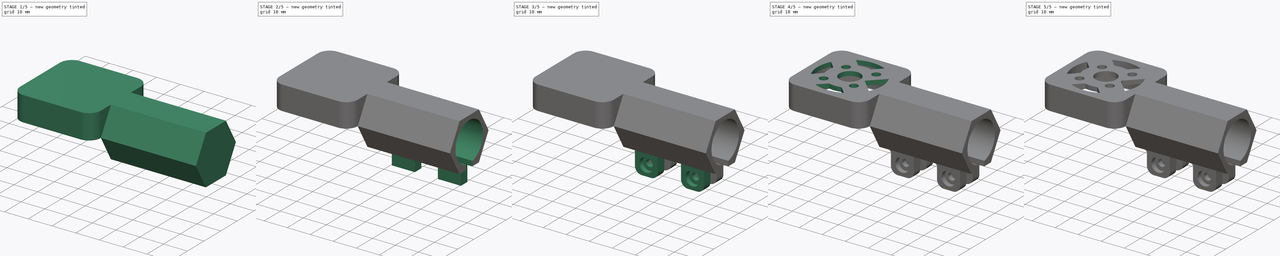
[diagram: build sequence overview — one tinted view per stage of 5, left to right]
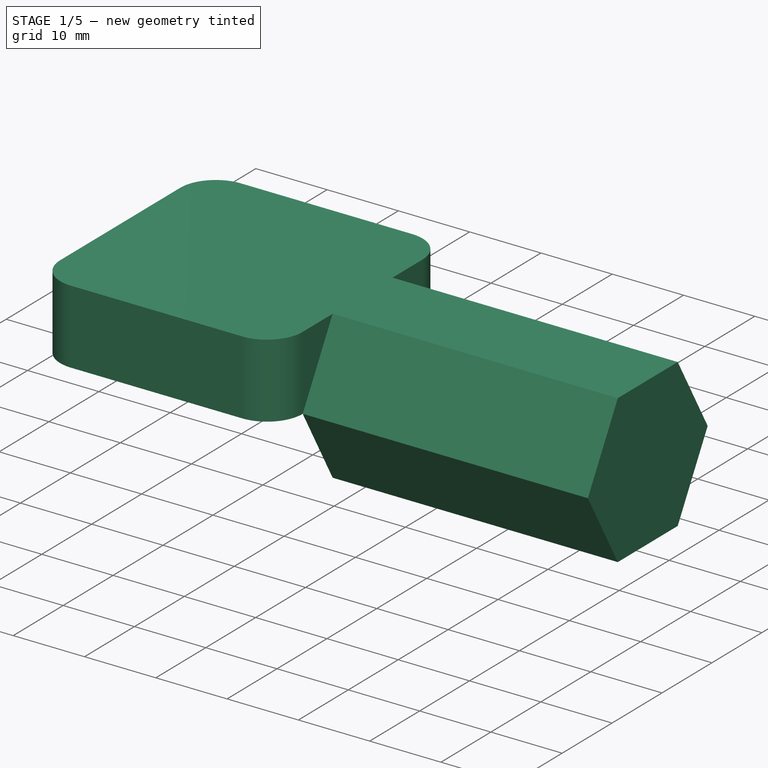
[diagram: stage 1 of 5 — iso view after this stage's code; geometry added in this stage tinted green]
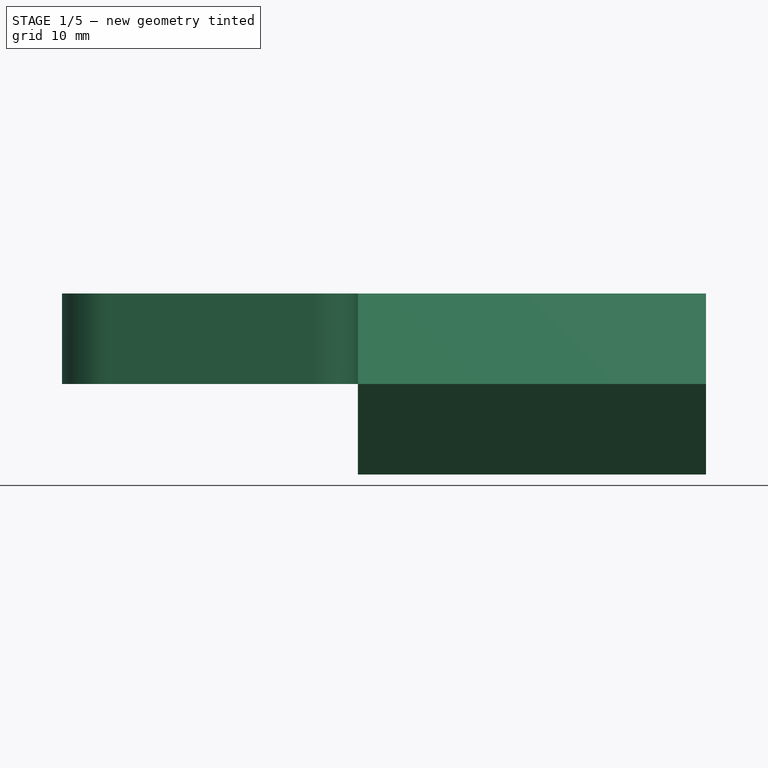
[diagram: stage 1 of 5 — front view after this stage's code; geometry added in this stage tinted green]
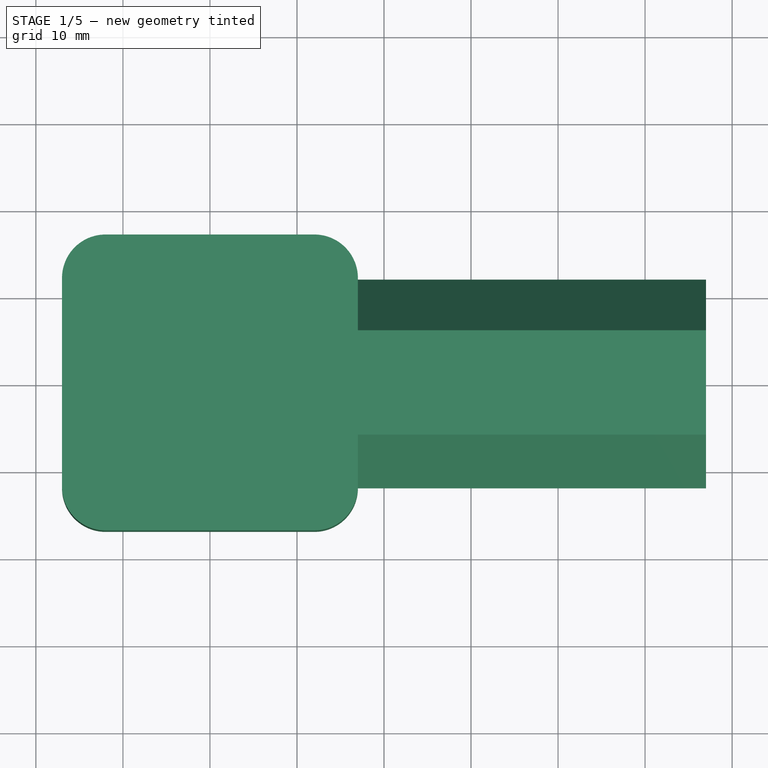
[diagram: stage 1 of 5 — top view after this stage's code; geometry added in this stage tinted green]
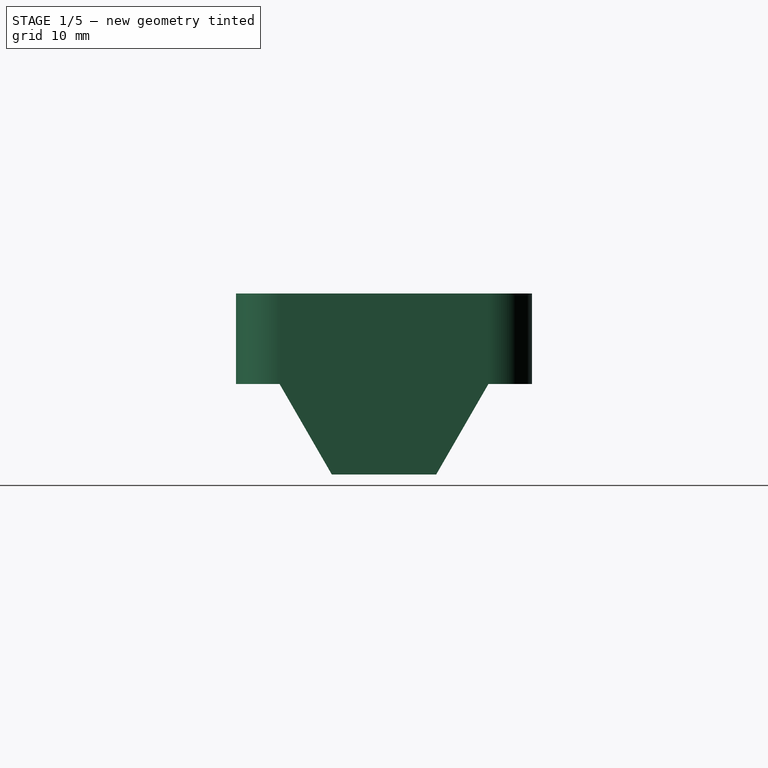
[diagram: stage 1 of 5 — right view after this stage's code; geometry added in this stage tinted green]
FCSTD DOCUMENT  (FreeCAD 0.20R29603 (Git))
Label: A2212_motor_base
License: All rights reserved
LicenseURL: http://en.wikipedia.org/wiki/All_rights_reserved
objects: PartDesign::Fillet×12, Sketcher::SketchObject×11, PartDesign::Pocket×7, PartDesign::Pad×4, PartDesign::Body×1
note: 58 computed .brp shape members not serialized (recipe doc carries the construction recipe); baked Part::Feature solids carry a one-line shape summary decoded from their .brp

FEATURE [Sketcher::SketchObject] Sketch
  FullyConstrained = true
  MapMode = 5
  Support = -> [XY_Plane]
  sketch-geometry (5):
    g0: LineSegment StartX=-17 StartY=-17 StartZ=0 EndX=-17 EndY=17 EndZ=0
    g1: LineSegment StartX=-17 StartY=17 StartZ=0 EndX=17 EndY=17 EndZ=0
    g2: LineSegment StartX=17 StartY=17 StartZ=0 EndX=17 EndY=-17 EndZ=0
    g3: LineSegment StartX=17 StartY=-17 StartZ=0 EndX=-17 EndY=-17 EndZ=0
    g4: GeomPoint X=0 Y=0 Z=0
  constraints (12):
    c: Coincident(g0,g1)
    c: Coincident(g1,g2)
    c: Coincident(g2,g3)
    c: Coincident(g3,g0)
    c: Horizontal(g1)
    c: Horizontal(g3)
    c: Vertical(g0)
    c: Vertical(g2)
    c: Symmetric(g1,g0,g4)
    c: Coincident(g4,g-1)
    c: DistanceX(g1,g1) = 34
    c: DistanceY(g2,g2) = 34
FEATURE [PartDesign::Pad] Pad
  Direction = (0,0,1)
  Length = 10.3923
  Length2 = 10
  Profile = -> Sketch
  ReferenceAxis = -> Sketch [N_Axis]
  Type = 0
  expr: Length = 10.3923mm
FEATURE [Sketcher::SketchObject] Sketch001
  FullyConstrained = true
  MapMode = 5
  Placement = pos=(0,0,0) rot=(1,0,0;3.14159rad)
  Support = -> [Pad]
  sketch-geometry (1):
    g0: Circle CenterX=0 CenterY=0 CenterZ=0 NormalX=0 NormalY=0 NormalZ=1 AngleXU=0 Radius=14
  constraints (2):
    c: Coincident(g0,g-1)
    c: Diameter(g0) = 28
FEATURE [PartDesign::Pocket] Pocket
  BaseFeature = -> Pad
  Direction = (0,0,1)
  Length = 8.5
  Length2 = 5
  Profile = -> Sketch001
  ReferenceAxis = -> Sketch001 [N_Axis]
  Type = 0
FEATURE [PartDesign::Fillet] Fillet
  Base = -> Pocket [Edge1]
  BaseFeature = -> Pocket
  Radius = 5
  SupportTransform = false
  UseAllEdges = false
FEATURE [PartDesign::Fillet] Fillet001
  Base = -> Fillet [Edge16,Edge12,Edge3]
  BaseFeature = -> Fillet
  Radius = 5
  SupportTransform = false
  UseAllEdges = false
FEATURE [Sketcher::SketchObject] Sketch002
  FullyConstrained = true
  MapMode = 5
  Placement = pos=(17,0,0) rot=(0.57735,0.57735,0.57735;2.0944rad)
  Support = -> [Fillet001]
  sketch-geometry (7):
    g0: LineSegment StartX=6 StartY=10.3923 StartZ=0 EndX=-6 EndY=10.3923 EndZ=0
    g1: LineSegment StartX=-6 StartY=10.3923 StartZ=0 EndX=-12 EndY=0 EndZ=0
    g2: LineSegment StartX=-12 StartY=0 StartZ=0 EndX=-6 EndY=-10.3923 EndZ=0
    g3: LineSegment StartX=-6 StartY=-10.3923 StartZ=0 EndX=6 EndY=-10.3923 EndZ=0
    g4: LineSegment StartX=6 StartY=-10.3923 StartZ=0 EndX=12 EndY=0 EndZ=0
    g5: LineSegment StartX=12 StartY=0 StartZ=0 EndX=6 EndY=10.3923 EndZ=0
    g6: Circle CenterX=0 CenterY=0 CenterZ=0 NormalX=0 NormalY=0 NormalZ=1 AngleXU=0 Radius=12
  constraints (16):
    c: Coincident(g0,g1)
    c: Coincident(g1,g2)
    c: Coincident(g2,g3)
    c: Coincident(g3,g4)
    c: Coincident(g4,g5)
    c: Coincident(g5,g0)
    c: Equal(g0, g1-g5) x5
    c: PointOnObject(g0,g6)
    c: PointOnObject(g1,g6)
    c: PointOnObject(g2,g6)
    c: PointOnObject(g3,g6)
    c: PointOnObject(g4,g6)
    c: PointOnObject(g5,g6)
    c: Coincident(g6,g-1)
    c: Horizontal(g0)
    c: Diameter(g6) = 24
FEATURE [PartDesign::Pad] Pad001
  BaseFeature = -> Fillet001
  Direction = (1,0,0)
  Length = 40
  Length2 = 10
  Profile = -> Sketch002
  ReferenceAxis = -> Sketch002 [N_Axis]
  Type = 0
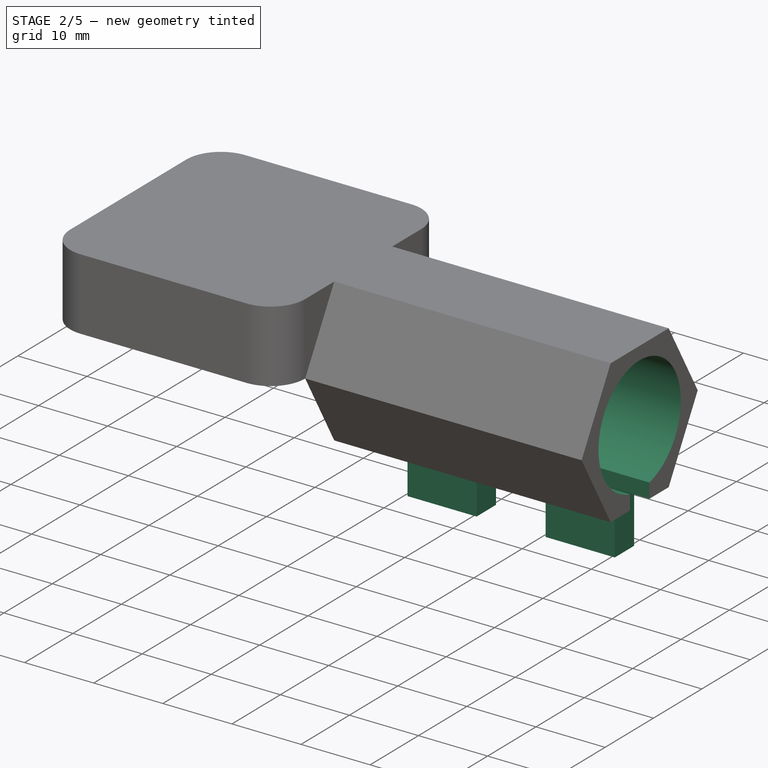
[diagram: stage 2 of 5 — iso view after this stage's code; geometry added in this stage tinted green]
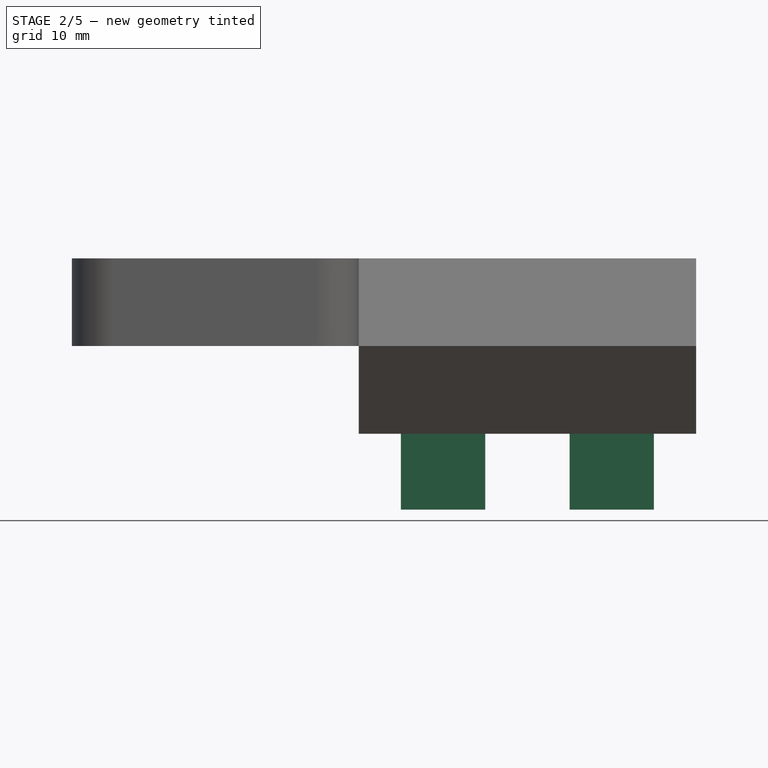
[diagram: stage 2 of 5 — front view after this stage's code; geometry added in this stage tinted green]
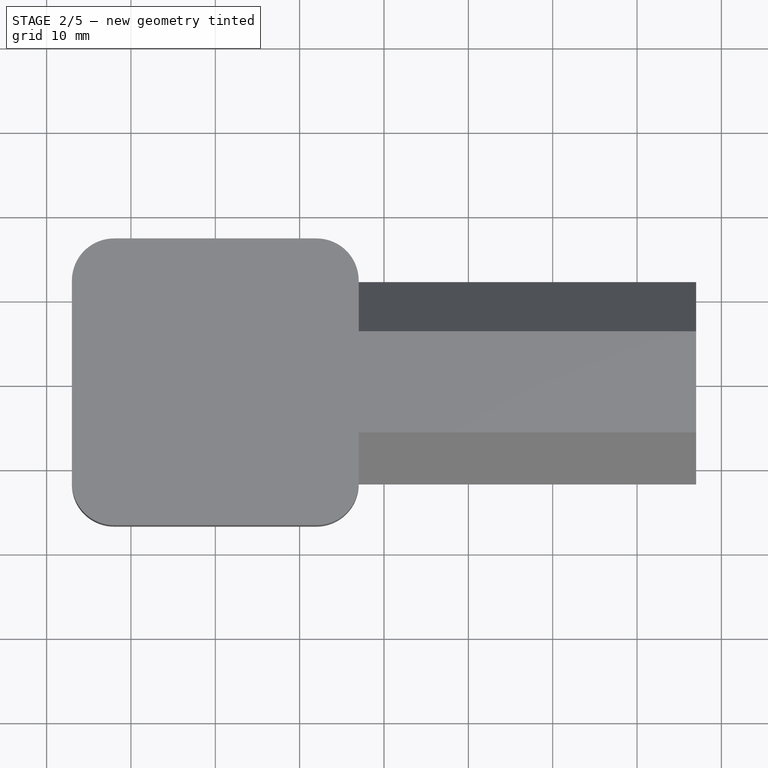
[diagram: stage 2 of 5 — top view after this stage's code; geometry added in this stage tinted green]
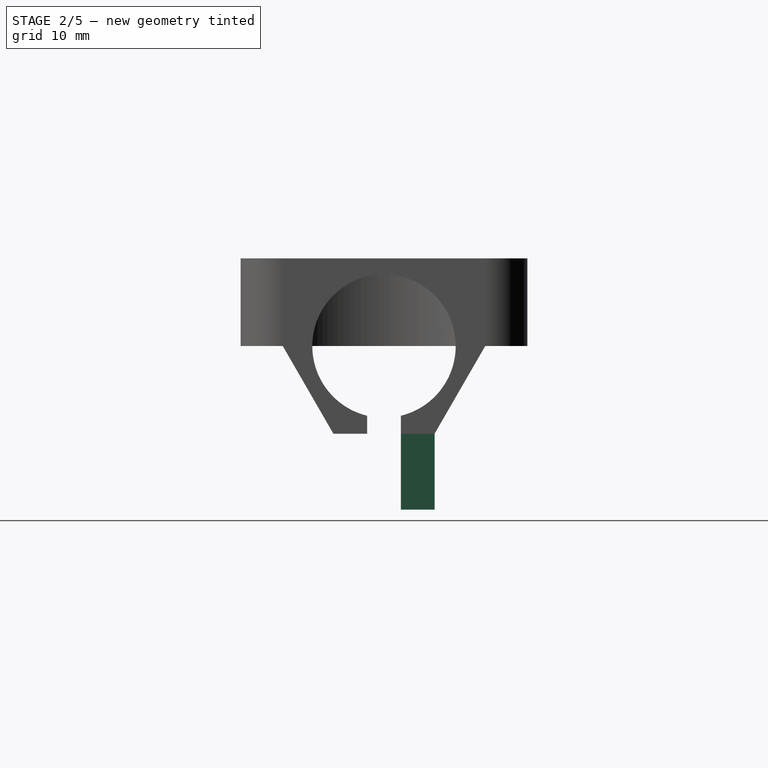
[diagram: stage 2 of 5 — right view after this stage's code; geometry added in this stage tinted green]
FEATURE [Sketcher::SketchObject] Sketch003
  FullyConstrained = true
  MapMode = 5
  Placement = pos=(57,0,0) rot=(0.57735,0.57735,0.57735;2.0944rad)
  Support = -> [Pad001]
  sketch-geometry (1):
    g0: Circle CenterX=0 CenterY=0 CenterZ=0 NormalX=0 NormalY=0 NormalZ=1 AngleXU=0 Radius=8.5
  constraints (2):
    c: Coincident(g0,g-1)
    c: Diameter(g0) = 17
FEATURE [PartDesign::Pocket] Pocket001
  BaseFeature = -> Pad001
  Direction = (-1,0,0)
  Length = 50
  Length2 = 5
  Profile = -> Sketch003
  ReferenceAxis = -> Sketch003 [N_Axis]
  Type = 0
FEATURE [Sketcher::SketchObject] Sketch004
  FullyConstrained = true
  MapMode = 5
  Placement = pos=(0,0,-10.3923) rot=(1,0,0;3.14159rad)
  Support = -> [Pocket001]
  sketch-geometry (5):
    g0: LineSegment StartX=17 StartY=-2 StartZ=0 EndX=17 EndY=2 EndZ=0
    g1: LineSegment StartX=17 StartY=2 StartZ=0 EndX=57 EndY=2 EndZ=0
    g2: LineSegment StartX=57 StartY=2 StartZ=0 EndX=57 EndY=-2 EndZ=0
    g3: LineSegment StartX=57 StartY=-2 StartZ=0 EndX=17 EndY=-2 EndZ=0
    g4: GeomPoint X=37 Y=0 Z=0
  constraints (13):
    c: Coincident(g0,g1)
    c: Coincident(g1,g2)
    c: Coincident(g2,g3)
    c: Coincident(g3,g0)
    c: Horizontal(g1)
    c: Horizontal(g3)
    c: Vertical(g0)
    c: Vertical(g2)
    c: Symmetric(g1,g0,g4)
    c: PointOnObject(g4,g-1)
    c: DistanceX(g1,g1) = 40
    c: DistanceY(g2,g2) = 4
    c: DistanceX(g-1,g4) = 37
FEATURE [PartDesign::Pocket] Pocket002
  BaseFeature = -> Pocket001
  Direction = (0,0,1)
  Length = 5
  Length2 = 5
  Profile = -> Sketch004
  ReferenceAxis = -> Sketch004 [N_Axis]
  Type = 0
FEATURE [Sketcher::SketchObject] Sketch005
  FullyConstrained = true
  MapMode = 5
  Placement = pos=(0,0,-10.3923) rot=(1,0,0;3.14159rad)
  Support = -> [Pocket002]
  sketch-geometry (10):
    g0: LineSegment StartX=22 StartY=-2 StartZ=0 EndX=22 EndY=-6 EndZ=0
    g1: LineSegment StartX=22 StartY=-6 StartZ=0 EndX=32 EndY=-6 EndZ=0
    g2: LineSegment StartX=32 StartY=-6 StartZ=0 EndX=32 EndY=-2 EndZ=0
    g3: LineSegment StartX=32 StartY=-2 StartZ=0 EndX=22 EndY=-2 EndZ=0
    g4: GeomPoint X=27 Y=-4 Z=0
    g5: LineSegment StartX=42 StartY=-2 StartZ=0 EndX=42 EndY=-6 EndZ=0
    g6: LineSegment StartX=42 StartY=-6 StartZ=0 EndX=52 EndY=-6 EndZ=0
    g7: LineSegment StartX=52 StartY=-6 StartZ=0 EndX=52 EndY=-2 EndZ=0
    g8: LineSegment StartX=52 StartY=-2 StartZ=0 EndX=42 EndY=-2 EndZ=0
    g9: GeomPoint X=47 Y=-4 Z=0
  constraints (26):
    c: Coincident(g0,g1)
    c: Coincident(g1,g2)
    c: Coincident(g2,g3)
    c: Coincident(g3,g0)
    c: Horizontal(g1)
    c: Horizontal(g3)
    c: Vertical(g0)
    c: Vertical(g2)
    c: Symmetric(g1,g0,g4)
    c: Coincident(g5,g6)
    c: Coincident(g6,g7)
    c: Coincident(g7,g8)
    c: Coincident(g8,g5)
    c: Horizontal(g6)
    c: Horizontal(g8)
    c: Vertical(g5)
    c: Vertical(g7)
    c: Symmetric(g6,g5,g9)
    c: DistanceX(g1,g1) = 10
    c: DistanceY(g0,g0) = 4
    c: DistanceX(g8,g8) = 10
    c: DistanceY(g7,g7) = 4
    c: DistanceX(g-1,g0) = 22
    c: DistanceY(g0,g-1) = 2
    c: DistanceX(g2,g5) = 10
    c: Horizontal(g2,g5)
FEATURE [PartDesign::Pad] Pad002
  BaseFeature = -> Pocket002
  Direction = (0,0,-1)
  Length = 9
  Length2 = 10
  Profile = -> Sketch005
  ReferenceAxis = -> Sketch005 [N_Axis]
  Type = 0
FEATURE [Sketcher::SketchObject] Sketch006
  FullyConstrained = true
  MapMode = 5
  Placement = pos=(0,6,0) rot=(0,0.707107,0.707107;3.14159rad)
  Support = -> [Pad002]
  sketch-geometry (14):
    g0: LineSegment StartX=-45.375 StartY=-12.0777 StartZ=0 EndX=-48.625 EndY=-12.0777 EndZ=0
    g1: LineSegment StartX=-48.625 StartY=-12.0777 StartZ=0 EndX=-50.25 EndY=-14.8923 EndZ=0
    g2: LineSegment StartX=-50.25 StartY=-14.8923 StartZ=0 EndX=-48.625 EndY=-17.7069 EndZ=0
    g3: LineSegment StartX=-48.625 StartY=-17.7069 StartZ=0 EndX=-45.375 EndY=-17.7069 EndZ=0
    g4: LineSegment StartX=-45.375 StartY=-17.7069 StartZ=0 EndX=-43.75 EndY=-14.8923 EndZ=0
    g5: LineSegment StartX=-43.75 StartY=-14.8923 StartZ=0 EndX=-45.375 EndY=-12.0777 EndZ=0
    g6: Circle CenterX=-47 CenterY=-14.8923 CenterZ=0 NormalX=0 NormalY=0 NormalZ=1 AngleXU=0 Radius=3.25
    g7: LineSegment StartX=-25.375 StartY=-12.0777 StartZ=0 EndX=-28.625 EndY=-12.0777 EndZ=0
    g8: LineSegment StartX=-28.625 StartY=-12.0777 StartZ=0 EndX=-30.25 EndY=-14.8923 EndZ=0
    g9: LineSegment StartX=-30.25 StartY=-14.8923 StartZ=0 EndX=-28.625 EndY=-17.7069 EndZ=0
    g10: LineSegment StartX=-28.625 StartY=-17.7069 StartZ=0 EndX=-25.375 EndY=-17.7069 EndZ=0
    g11: LineSegment StartX=-25.375 StartY=-17.7069 StartZ=0 EndX=-23.75 EndY=-14.8923 EndZ=0
    g12: LineSegment StartX=-23.75 StartY=-14.8923 StartZ=0 EndX=-25.375 EndY=-12.0777 EndZ=0
    g13: Circle CenterX=-27 CenterY=-14.8923 CenterZ=0 NormalX=0 NormalY=0 NormalZ=1 AngleXU=0 Radius=3.25
  constraints (34):
    c: Coincident(g0,g1)
    c: Coincident(g1,g2)
    c: Coincident(g2,g3)
    c: Coincident(g3,g4)
    c: Coincident(g4,g5)
    c: Coincident(g5,g0)
    c: Equal(g0, g1-g5) x5
    c: PointOnObject(g0,g6)
    c: PointOnObject(g1,g6)
    c: PointOnObject(g2,g6)
    c: PointOnObject(g3,g6)
    c: PointOnObject(g4,g6)
    c: PointOnObject(g5,g6)
    c: Coincident(g7,g8)
    c: Coincident(g8,g9)
    c: Coincident(g9,g10)
    c: Coincident(g10,g11)
    c: Coincident(g11,g12)
    c: Coincident(g12,g7)
    c: Equal(g7, g8-g12) x5
    c: PointOnObject(g7,g13)
    c: PointOnObject(g8,g13)
    c: PointOnObject(g9,g13)
    c: PointOnObject(g10,g13)
    c: PointOnObject(g11,g13)
    c: PointOnObject(g12,g13)
    c: Diameter(g6) = 6.5
    c: Diameter(g13) = 6.5
    c: Horizontal(g0)
    c: Horizontal(g7)
    c: DistanceX(g13,g-1) = 27
    c: DistanceY(g13,g-1) = 14.8923
    c: DistanceX(g6,g13) = 20
    c: Horizontal(g6,g13)
FEATURE [PartDesign::Pocket] Pocket003
  BaseFeature = -> Pad002
  Direction = (0,-1,2e-16)
  Length = 2
  Length2 = 5
  Profile = -> Sketch006
  ReferenceAxis = -> Sketch006 [N_Axis]
  Type = 0
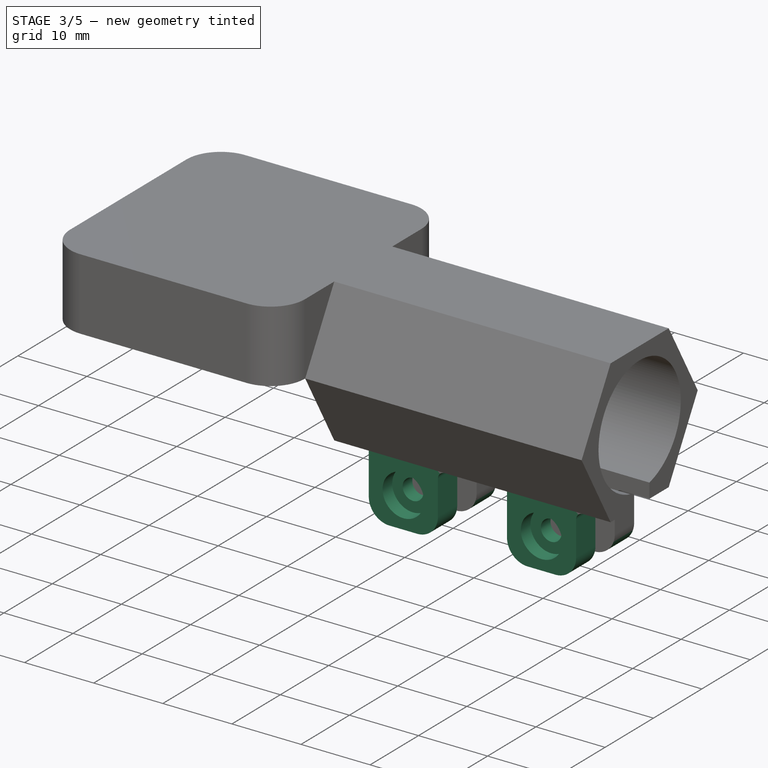
[diagram: stage 3 of 5 — iso view after this stage's code; geometry added in this stage tinted green]
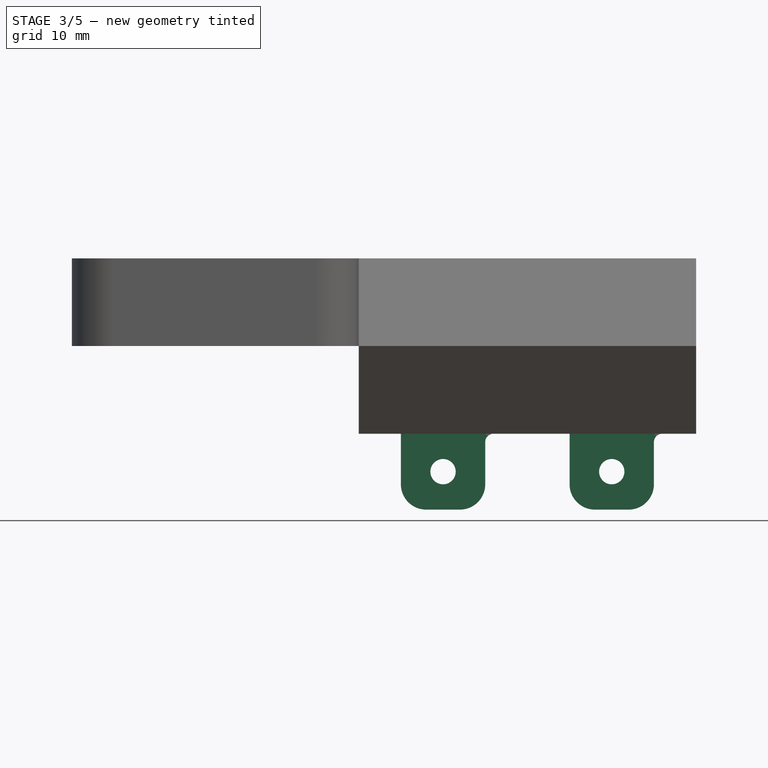
[diagram: stage 3 of 5 — front view after this stage's code; geometry added in this stage tinted green]
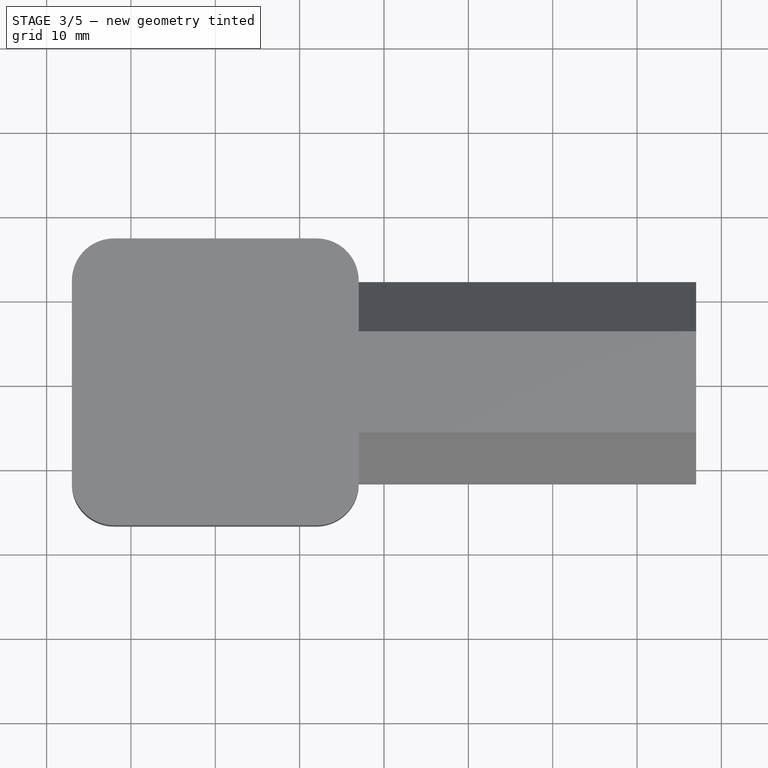
[diagram: stage 3 of 5 — top view after this stage's code; geometry added in this stage tinted green]
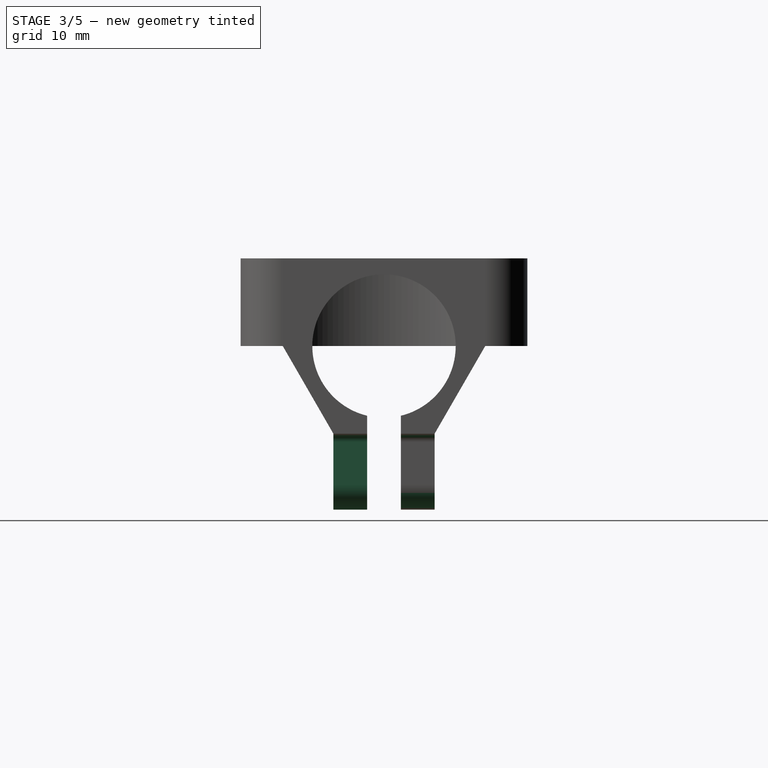
[diagram: stage 3 of 5 — right view after this stage's code; geometry added in this stage tinted green]
FEATURE [Sketcher::SketchObject] Sketch007
  FullyConstrained = true
  MapMode = 5
  Placement = pos=(0,0,-10.3923) rot=(1,0,0;3.14159rad)
  Support = -> [Pocket003]
  sketch-geometry (10):
    g0: LineSegment StartX=22 StartY=2 StartZ=0 EndX=22 EndY=6 EndZ=0
    g1: LineSegment StartX=22 StartY=6 StartZ=0 EndX=32 EndY=6 EndZ=0
    g2: LineSegment StartX=32 StartY=6 StartZ=0 EndX=32 EndY=2 EndZ=0
    g3: LineSegment StartX=32 StartY=2 StartZ=0 EndX=22 EndY=2 EndZ=0
    g4: GeomPoint X=27 Y=4 Z=0
    g5: LineSegment StartX=42 StartY=2 StartZ=0 EndX=42 EndY=6 EndZ=0
    g6: LineSegment StartX=42 StartY=6 StartZ=0 EndX=52 EndY=6 EndZ=0
    g7: LineSegment StartX=52 StartY=6 StartZ=0 EndX=52 EndY=2 EndZ=0
    g8: LineSegment StartX=52 StartY=2 StartZ=0 EndX=42 EndY=2 EndZ=0
    g9: GeomPoint X=47 Y=4 Z=0
  constraints (26):
    c: Coincident(g0,g1)
    c: Coincident(g1,g2)
    c: Coincident(g2,g3)
    c: Coincident(g3,g0)
    c: Horizontal(g1)
    c: Horizontal(g3)
    c: Vertical(g0)
    c: Vertical(g2)
    c: Symmetric(g1,g0,g4)
    c: Coincident(g5,g6)
    c: Coincident(g6,g7)
    c: Coincident(g7,g8)
    c: Coincident(g8,g5)
    c: Horizontal(g6)
    c: Horizontal(g8)
    c: Vertical(g5)
    c: Vertical(g7)
    c: Symmetric(g6,g5,g9)
    c: DistanceX(g1,g1) = 10
    c: DistanceX(g6,g6) = 10
    c: DistanceY(g2,g2) = 4
    c: DistanceY(g7,g7) = 4
    c: DistanceX(g-1,g0) = 22
    c: DistanceY(g-1,g0) = 2
    c: DistanceX(g2,g5) = 10
    c: Horizontal(g1,g5)
FEATURE [PartDesign::Pad] Pad003
  BaseFeature = -> Pocket003
  Direction = (0,0,-1)
  Length = 9
  Length2 = 10
  Profile = -> Sketch007
  ReferenceAxis = -> Sketch007 [N_Axis]
  Type = 0
FEATURE [Sketcher::SketchObject] Sketch008
  FullyConstrained = true
  MapMode = 5
  Placement = pos=(0,-6,0) rot=(1,0,0;1.5708rad)
  Support = -> [Pad003]
  sketch-geometry (2):
    g0: Circle CenterX=27 CenterY=-14.8923 CenterZ=0 NormalX=0 NormalY=0 NormalZ=1 AngleXU=0 Radius=1.5
    g1: Circle CenterX=47 CenterY=-14.8923 CenterZ=0 NormalX=0 NormalY=0 NormalZ=1 AngleXU=0 Radius=1.5
  constraints (6):
    c: Diameter(g0) = 3
    c: Diameter(g1) = 3
    c: DistanceX(g-1,g0) = 27
    c: DistanceY(g0,g-1) = 14.8923
    c: Horizontal(g0,g1)
    c: DistanceX(g0,g1) = 20
FEATURE [PartDesign::Pocket] Pocket004
  BaseFeature = -> Pad003
  Direction = (0,1,-2e-16)
  Length = 10
  Length2 = 5
  Profile = -> Sketch008
  ReferenceAxis = -> Sketch008 [N_Axis]
  Type = 0
FEATURE [Sketcher::SketchObject] Sketch009
  FullyConstrained = true
  MapMode = 5
  Placement = pos=(0,-6,0) rot=(1,0,0;1.5708rad)
  Support = -> [Pocket004]
  sketch-geometry (2):
    g0: Circle CenterX=27 CenterY=-14.8923 CenterZ=0 NormalX=0 NormalY=0 NormalZ=1 AngleXU=0 Radius=3
    g1: Circle CenterX=47 CenterY=-14.8923 CenterZ=0 NormalX=0 NormalY=0 NormalZ=1 AngleXU=0 Radius=3
  constraints (6):
    c: Diameter(g0) = 6
    c: Diameter(g1) = 6
    c: DistanceY(g0,g-1) = 14.8923
    c: DistanceX(g-1,g0) = 27
    c: Horizontal(g0,g1)
    c: DistanceX(g0,g1) = 20
FEATURE [PartDesign::Pocket] Pocket005
  BaseFeature = -> Pocket004
  Direction = (0,1,-2e-16)
  Length = 2
  Length2 = 5
  Profile = -> Sketch009
  ReferenceAxis = -> Sketch009 [N_Axis]
  Type = 0
FEATURE [PartDesign::Fillet] Fillet002
  Base = -> Pocket005 [Edge117,Edge137,Edge170,Edge142,Edge173,Edge169,Edge138,Edge139]
  BaseFeature = -> Pocket005
  Radius = 3
  SupportTransform = false
  UseAllEdges = false
FEATURE [PartDesign::Fillet] Fillet003
  Base = -> Fillet002 [Edge37,Edge160,Edge110,Edge10]
  BaseFeature = -> Fillet002
  Radius = 1
  SupportTransform = false
  UseAllEdges = false
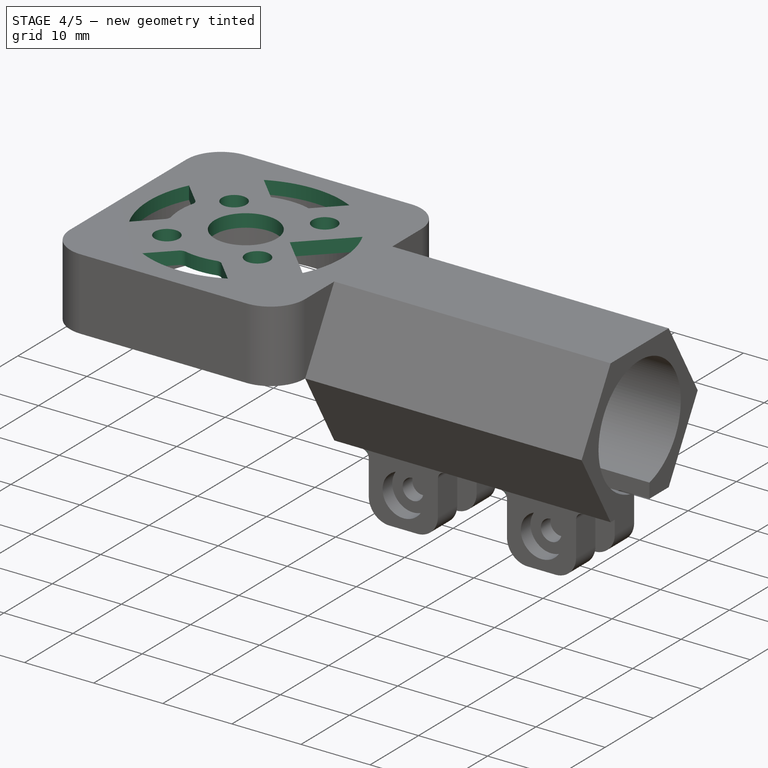
[diagram: stage 4 of 5 — iso view after this stage's code; geometry added in this stage tinted green]
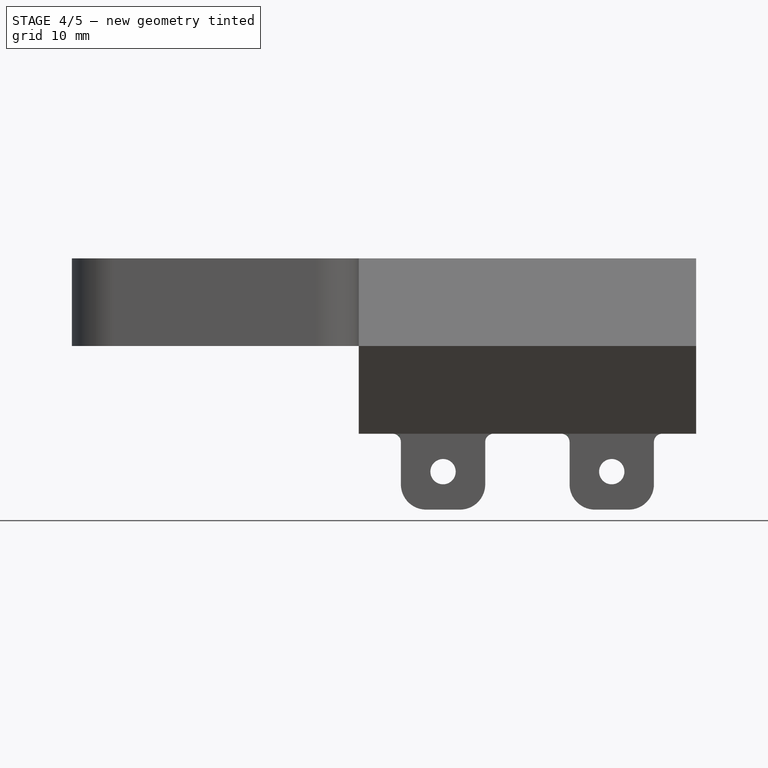
[diagram: stage 4 of 5 — front view after this stage's code; geometry added in this stage tinted green]
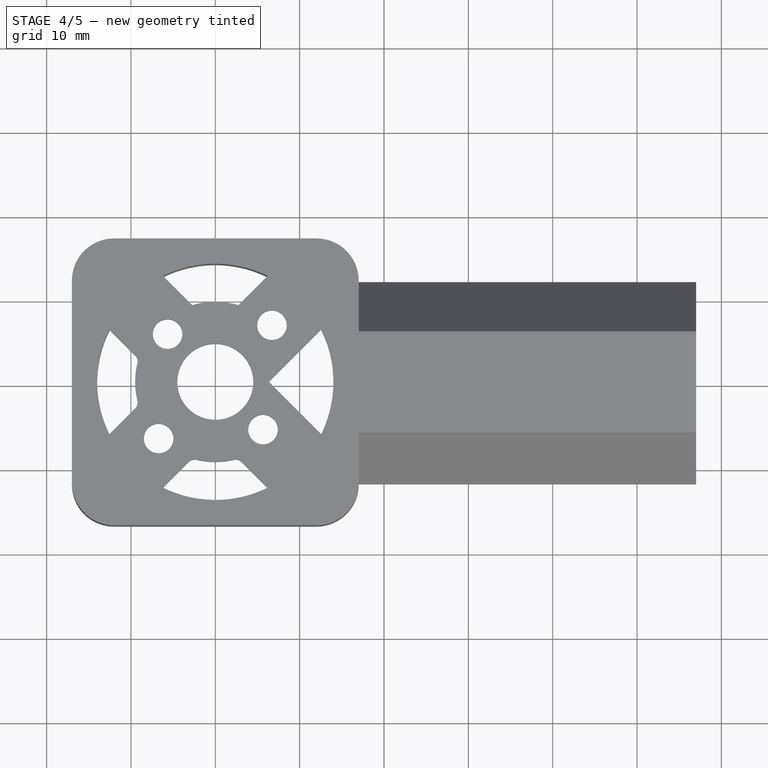
[diagram: stage 4 of 5 — top view after this stage's code; geometry added in this stage tinted green]
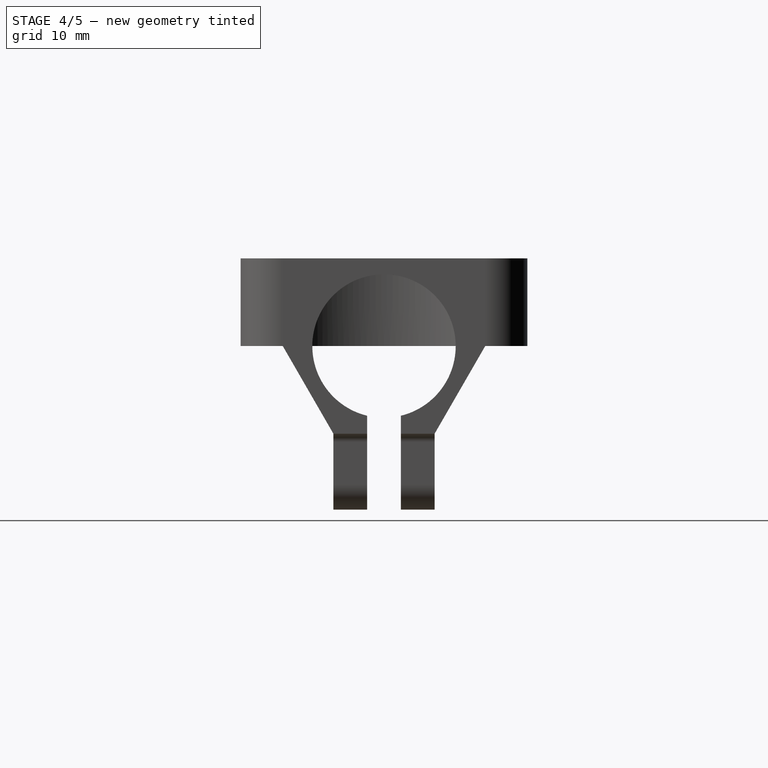
[diagram: stage 4 of 5 — right view after this stage's code; geometry added in this stage tinted green]
FEATURE [PartDesign::Fillet] Fillet004
  Base = -> Fillet003 [Edge163,Edge67,Edge148,Edge29]
  BaseFeature = -> Fillet003
  Radius = 1
  SupportTransform = false
  UseAllEdges = false
FEATURE [Sketcher::SketchObject] Sketch010
  FullyConstrained = true
  MapMode = 5
  Placement = pos=(0,0,10.3923) rot=(0,0,1;0rad)
  Support = -> [Fillet004]
  sketch-geometry (40):
    g0: Circle CenterX=0 CenterY=0 CenterZ=0 NormalX=0 NormalY=0 NormalZ=1 AngleXU=0 Radius=4.5
    g1: Circle CenterX=0 CenterY=0 CenterZ=0 NormalX=0 NormalY=0 NormalZ=1 AngleXU=0 Radius=14
    g2: Circle CenterX=0 CenterY=0 CenterZ=0 NormalX=0 NormalY=0 NormalZ=1 AngleXU=0 Radius=9.5
    g3: Circle CenterX=0 CenterY=0 CenterZ=0 NormalX=0 NormalY=0 NormalZ=1 AngleXU=0 Radius=8
    g4: LineSegment StartX=0 StartY=0 StartZ=0 EndX=6.71751 EndY=6.71751 EndZ=0
    g5: LineSegment StartX=0 StartY=0 StartZ=0 EndX=-6.71751 EndY=-6.71751 EndZ=0
    g6: LineSegment StartX=0 StartY=0 StartZ=0 EndX=-5.65685 EndY=5.65685 EndZ=0
    g7: LineSegment StartX=0 StartY=0 StartZ=0 EndX=5.65685 EndY=-5.65685 EndZ=0
    g8: Circle CenterX=6.71751 CenterY=6.71751 CenterZ=0 NormalX=0 NormalY=0 NormalZ=1 AngleXU=0 Radius=1.75
    g9: Circle CenterX=-5.65685 CenterY=5.65685 CenterZ=0 NormalX=0 NormalY=0 NormalZ=1 AngleXU=0 Radius=1.75
    g10: Circle CenterX=-6.71751 CenterY=-6.71751 CenterZ=0 NormalX=0 NormalY=0 NormalZ=1 AngleXU=0 Radius=1.75
    g11: Circle CenterX=5.65685 CenterY=-5.65685 CenterZ=0 NormalX=0 NormalY=0 NormalZ=1 AngleXU=0 Radius=1.75
    g12: LineSegment StartX=-12.5561 StartY=-6.19219 StartZ=0 EndX=6.19219 EndY=12.5561 EndZ=0
    g13: LineSegment StartX=-6.19219 StartY=-12.5561 StartZ=0 EndX=12.5561 EndY=6.19219 EndZ=0
    g14: LineSegment StartX=12.5561 StartY=-6.19219 StartZ=0 EndX=-6.19219 EndY=12.5561 EndZ=0
    g15: LineSegment StartX=6.19219 StartY=-12.5561 StartZ=0 EndX=-12.5561 EndY=6.19219 EndZ=0
    g16: ArcOfCircle CenterX=-1.73e-14 CenterY=-5.9e-15 CenterZ=0 NormalX=0 NormalY=0 NormalZ=1 AngleXU=0 Radius=14 StartAngle=5.82502 EndAngle=6.74135
    g17: GeomPoint X=-2.7341 Y=9.09806 Z=0
    g18: GeomPoint X=2.7341 Y=9.09806 Z=0
    g19: GeomPoint X=-9.09806 Y=2.7341 Z=0
    g20: GeomPoint X=-9.09806 Y=-2.7341 Z=0
    g21: GeomPoint X=-2.7341 Y=-9.09806 Z=0
    g22: GeomPoint X=2.7341 Y=-9.09806 Z=0
    g23: ArcOfCircle CenterX=-5e-16 CenterY=-2.2e-15 CenterZ=0 NormalX=0 NormalY=0 NormalZ=1 AngleXU=0 Radius=14 StartAngle=1.11264 EndAngle=2.02896
    g24: ArcOfCircle CenterX=0 CenterY=8.7e-15 CenterZ=0 NormalX=0 NormalY=0 NormalZ=1 AngleXU=0 Radius=9.5 StartAngle=1.27887 EndAngle=1.86273
    g25: LineSegment StartX=-2.7341 StartY=9.09806 StartZ=0 EndX=-6.19219 EndY=12.5561 EndZ=0
    g26: LineSegment StartX=2.7341 StartY=9.09806 StartZ=0 EndX=6.19219 EndY=12.5561 EndZ=0
    g27: ArcOfCircle CenterX=7.6e-15 CenterY=-7e-16 CenterZ=0 NormalX=0 NormalY=0 NormalZ=1 AngleXU=0 Radius=14 StartAngle=2.68343 EndAngle=3.59975
    g28: ArcOfCircle CenterX=-9.7e-15 CenterY=1.1e-15 CenterZ=0 NormalX=0 NormalY=0 NormalZ=1 AngleXU=0 Radius=9.5 StartAngle=2.84966 EndAngle=3.43352
    g29: LineSegment StartX=-9.09806 StartY=2.7341 StartZ=0 EndX=-12.5561 EndY=6.19219 EndZ=0
    g30: LineSegment StartX=-9.09806 StartY=-2.7341 StartZ=0 EndX=-12.5561 EndY=-6.19219 EndZ=0
    g31: ArcOfCircle CenterX=1.2e-15 CenterY=1.97e-14 CenterZ=0 NormalX=0 NormalY=0 NormalZ=1 AngleXU=0 Radius=9.5 StartAngle=4.42046 EndAngle=5.00432
    g32: ArcOfCircle CenterX=0 CenterY=3.3e-15 CenterZ=0 NormalX=0 NormalY=0 NormalZ=1 AngleXU=0 Radius=14 StartAngle=4.25423 EndAngle=5.17055
    g33: LineSegment StartX=-6.19219 StartY=-12.5561 StartZ=0 EndX=-2.7341 EndY=-9.09806 EndZ=0
    g34: LineSegment StartX=6.19219 StartY=-12.5561 StartZ=0 EndX=2.7341 EndY=-9.09806 EndZ=0
    g35: LineSegment StartX=0 StartY=0 StartZ=0 EndX=12.5561 EndY=6.19219 EndZ=0
    g36: LineSegment StartX=0 StartY=0 StartZ=0 EndX=12.5561 EndY=-6.19219 EndZ=0
    g37: GeomPoint X=6.36396 Y=2e-16 Z=0
    g38: LineSegment StartX=6.36396 StartY=2e-16 StartZ=0 EndX=12.5561 EndY=6.19219 EndZ=0
    g39: LineSegment StartX=6.36396 StartY=2e-16 StartZ=0 EndX=12.5561 EndY=-6.19219 EndZ=0
  constraints (99):
    c: Coincident(g0,g-1)
    c: Diameter(g0) = 9
    c: Coincident(g1,g0)
    c: Coincident(g2,g0)
    c: Coincident(g3,g0)
    c: Diameter(g1) = 28
    c: Diameter(g2) = 19
    c: Diameter(g3) = 16
    c: Coincident(g4,g0)
    c: PointOnObject(g4,g2)
    c: Coincident(g5,g0)
    c: PointOnObject(g5,g2)
    c: Coincident(g6,g0)
    c: PointOnObject(g6,g3)
    c: Coincident(g7,g0)
    c: PointOnObject(g7,g3)
    c: Angle(g-1,g4) = 0.785398
    c: Angle(g4,g6) = 1.5708
    c: Angle(g6,g5) = 1.5708
    c: Angle(g5,g7) = 1.5708
    c: Coincident(g8,g4)
    c: Coincident(g9,g6)
    c: Coincident(g10,g5)
    c: Coincident(g11,g7)
    c: Diameter(g8) = 3.5
    c: Equal(g8,g9)
    c: Equal(g9,g10)
    c: Equal(g10,g11)
    c: PointOnObject(g12,g1)
    c: PointOnObject(g12,g1)
    c: PointOnObject(g13,g1)
    c: PointOnObject(g13,g1)
    c: Tangent(g0,g12)
    c: Tangent(g13,g0)
    c: Parallel(g4,g12)
    c: Parallel(g4,g13)
    c: PointOnObject(g14,g1)
    c: PointOnObject(g14,g1)
    c: PointOnObject(g15,g1)
    c: PointOnObject(g15,g1)
    c: Tangent(g15,g0)
    c: Tangent(g0,g14)
    c: Parallel(g6,g14)
    c: Parallel(g14,g15)
    c: Coincident(g16,g14)
    c: Coincident(g16,g13)
    c: Tangent(g16,g1)
    c: PointOnObject(g17,g14)
    c: PointOnObject(g18,g12)
    c: PointOnObject(g17,g2)
    c: PointOnObject(g18,g2)
    c: PointOnObject(g19,g15)
    c: PointOnObject(g20,g12)
    c: PointOnObject(g19,g2)
    c: PointOnObject(g20,g2)
    c: PointOnObject(g21,g13)
    c: PointOnObject(g22,g15)
    c: PointOnObject(g21,g2)
    c: PointOnObject(g22,g2)
    c: Coincident(g23,g12)
    c: Coincident(g23,g14)
    c: Tangent(g23,g1)
    c: Coincident(g24,g18)
    c: Coincident(g24,g17)
    c: Tangent(g24,g2)
    c: Coincident(g25,g24)
    c: Coincident(g25,g23)
    c: Coincident(g26,g24)
    c: Coincident(g26,g23)
    c: Coincident(g27,g15)
    c: Coincident(g27,g12)
    c: Tangent(g27,g1)
    c: Coincident(g28,g19)
    c: Coincident(g28,g20)
    c: Tangent(g28,g2)
    c: Coincident(g29,g28)
    c: Coincident(g29,g27)
    c: Coincident(g30,g28)
    c: Coincident(g30,g27)
    c: Coincident(g31,g21)
    c: Coincident(g31,g22)
    c: Tangent(g31,g2)
    c: Coincident(g32,g13)
    c: Coincident(g32,g15)
    c: Tangent(g32,g1)
    c: Coincident(g33,g32)
    c: Coincident(g33,g31)
    c: Coincident(g34,g32)
    c: Coincident(g34,g31)
    c: Coincident(g35,g0)
    c: Coincident(g35,g16)
    c: Coincident(g36,g0)
    c: Coincident(g36,g16)
    c: PointOnObject(g37,g14)
    c: PointOnObject(g37,g13)
    c: Coincident(g38,g37)
    c: Coincident(g38,g16)
    c: Coincident(g39,g38)
    c: Coincident(g39,g16)
FEATURE [PartDesign::Pocket] Pocket006
  BaseFeature = -> Fillet004
  Direction = (0,0,-1)
  Length = 5
  Length2 = 5
  Profile = -> Sketch010
  ReferenceAxis = -> Sketch010 [N_Axis]
  Type = 0
FEATURE [PartDesign::Fillet] Fillet005
  Base = -> Pocket006 [Edge310,Edge312]
  BaseFeature = -> Pocket006
  Radius = 1
  SupportTransform = false
  UseAllEdges = false
FEATURE [PartDesign::Fillet] Fillet009
  Base = -> Fillet005 [Edge71,Edge68]
  BaseFeature = -> Fillet005
  Radius = 1
  SupportTransform = false
  UseAllEdges = false
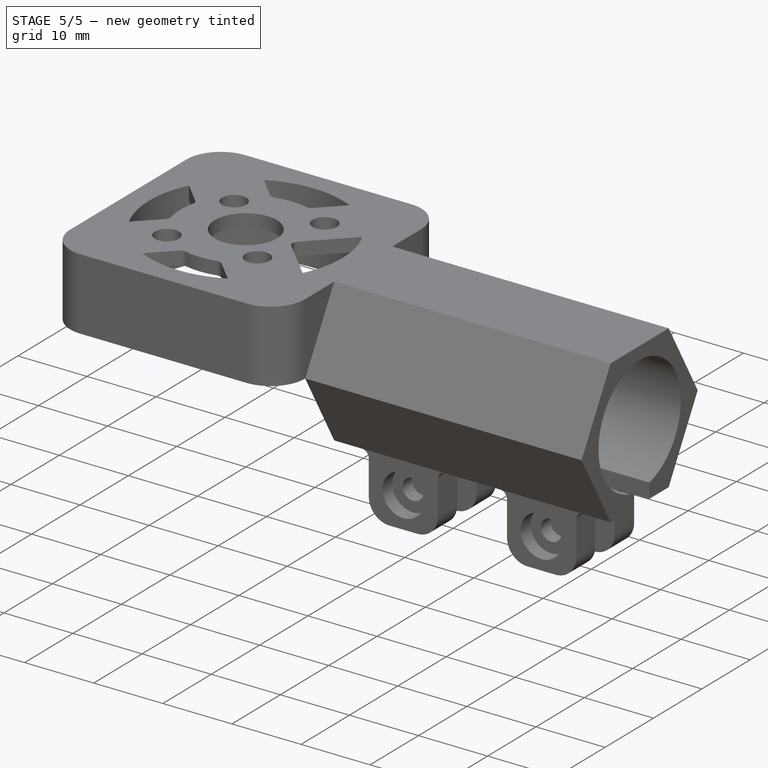
[diagram: stage 5 of 5 — iso view after this stage's code; geometry added in this stage tinted green]
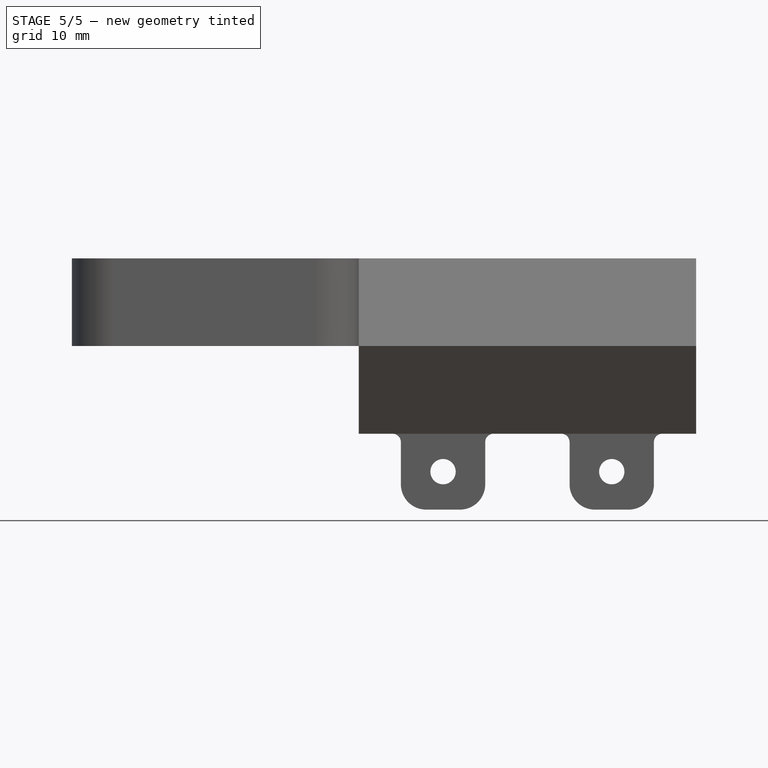
[diagram: stage 5 of 5 — front view after this stage's code; geometry added in this stage tinted green]
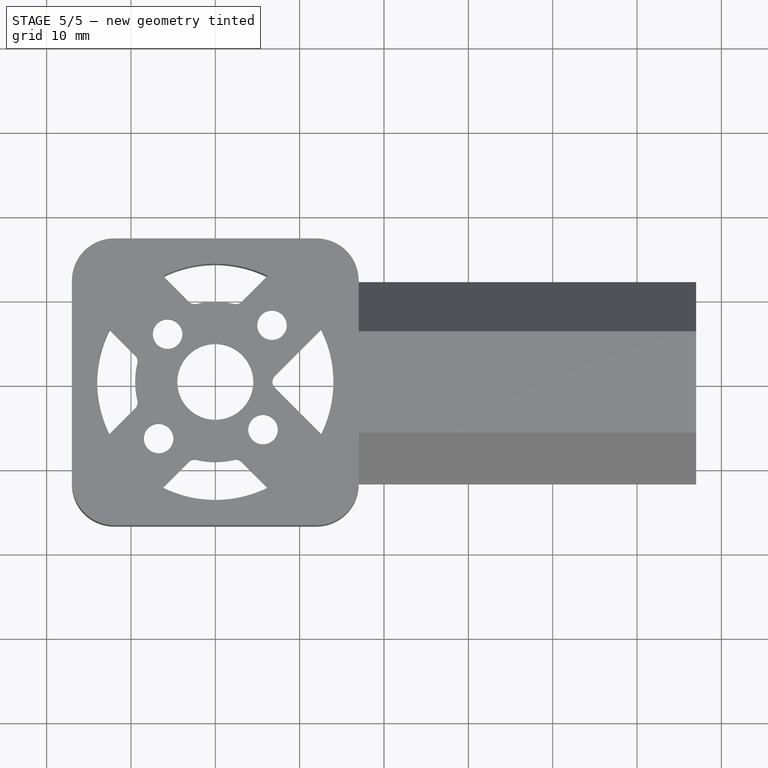
[diagram: stage 5 of 5 — top view after this stage's code; geometry added in this stage tinted green]
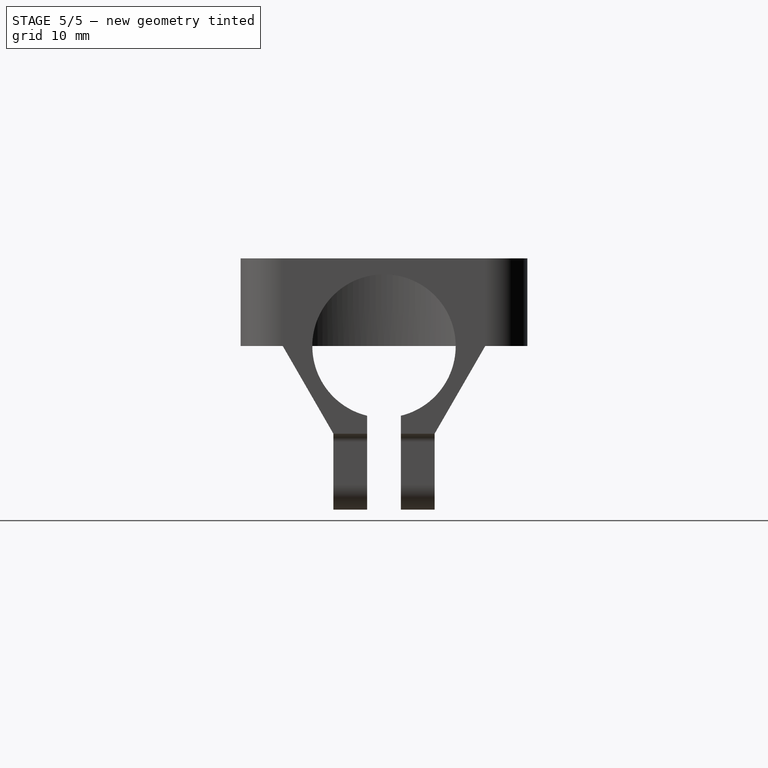
[diagram: stage 5 of 5 — right view after this stage's code; geometry added in this stage tinted green]
FEATURE [PartDesign::Fillet] Fillet006
  Base = -> Fillet005 [Edge71,Edge68]
  BaseFeature = -> Fillet005
  Radius = 1
  SupportTransform = false
  UseAllEdges = false
FEATURE [PartDesign::Fillet] Fillet007
  Base = -> Fillet006 [Edge98,Edge94]
  BaseFeature = -> Fillet006
  Radius = 1
  SupportTransform = false
  UseAllEdges = false
FEATURE [PartDesign::Fillet] Fillet008
  Base = -> Fillet007 [Edge102]
  BaseFeature = -> Fillet007
  Radius = 1
  SupportTransform = false
  UseAllEdges = false
FEATURE [PartDesign::Fillet] Fillet010
  Base = -> Fillet009 [Edge98,Edge94]
  BaseFeature = -> Fillet009
  Radius = 1
  SupportTransform = false
  UseAllEdges = false
FEATURE [PartDesign::Fillet] Fillet011
  Base = -> Fillet010 [Edge102]
  BaseFeature = -> Fillet010
  Radius = 1
  SupportTransform = false
  UseAllEdges = false
FEATURE [PartDesign::Body] Body
  Group = -> [Sketch,Pad,Sketch001,Pocket,Fillet,Fillet001,Sketch002,Pad001,Sketch003,Pocket001,Sketch004,Pocket002,Sketch005,Pad002,Sketch006,Pocket003,Sketch007,Pad003,Sketch008,Pocket004,Sketch009,Pocket005,Fillet002,Fillet003,Fillet004,Sketch010,Pocket006,Fillet005,Fillet006,Fillet007,Fillet008,Fillet009,Fillet010,Fillet011]
  Origin = -> Origin
  Tip = -> Fillet011
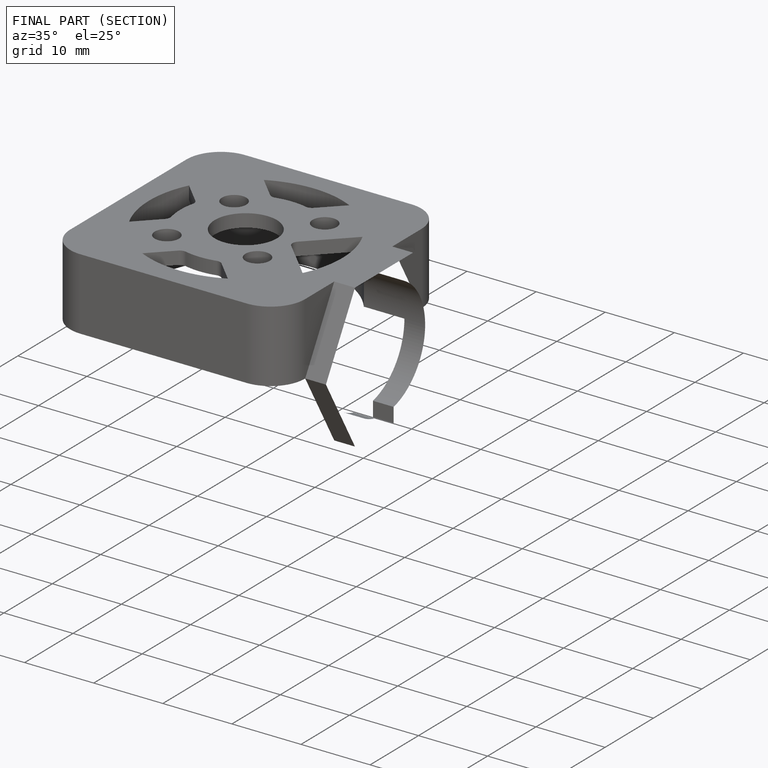
[diagram: finished part — half-section view (interior)]
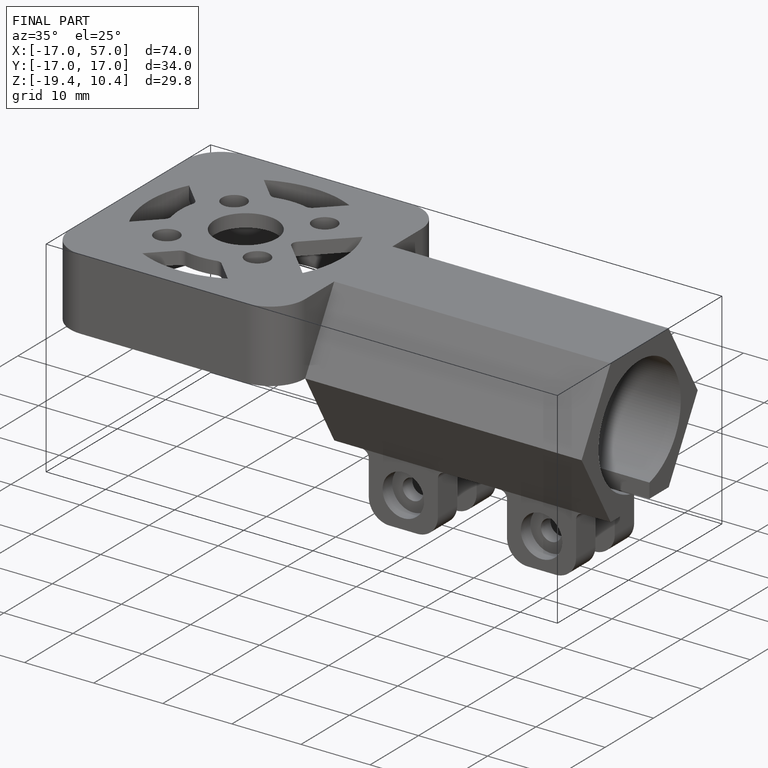
[diagram: finished part — iso view with bounding-box wireframe]
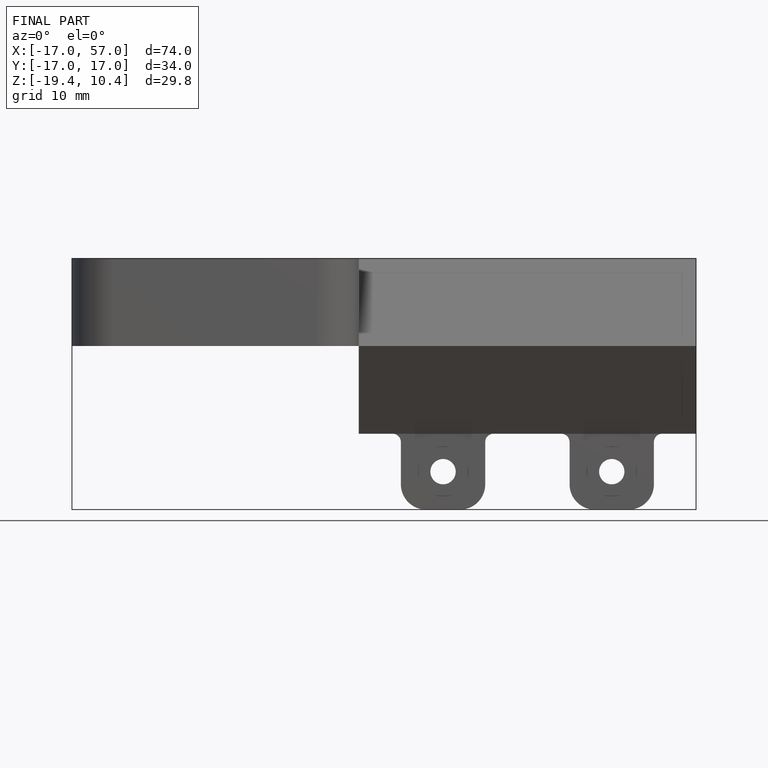
[diagram: finished part — front view with bounding-box wireframe]
